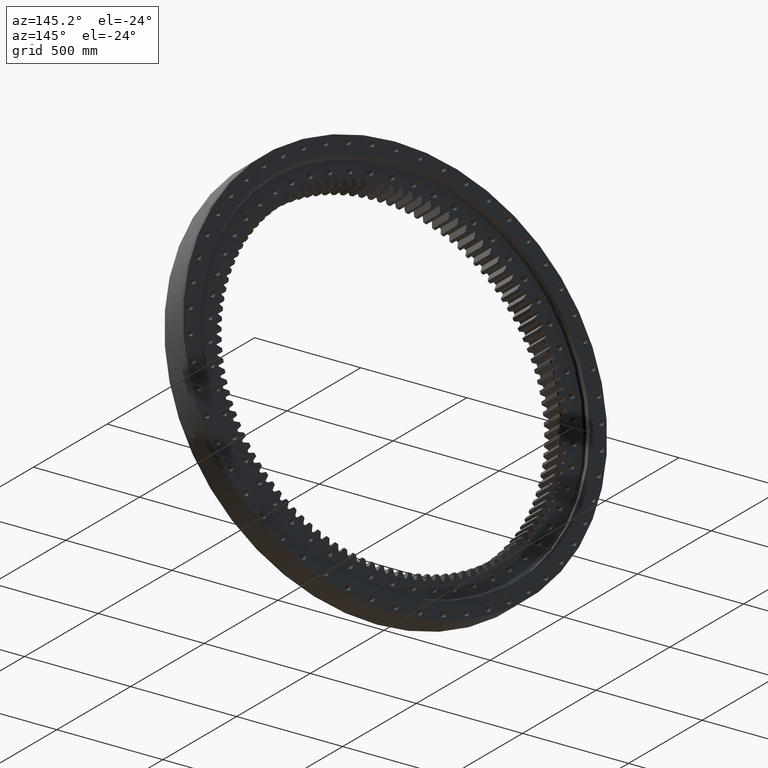
[diagram: clean part render]
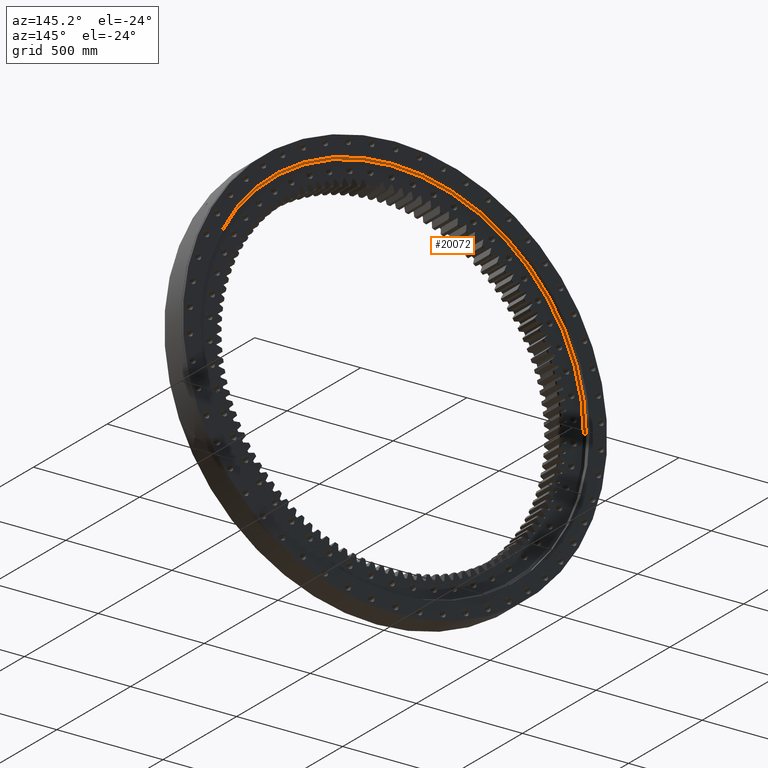
[diagram: same view with one face highlighted and labeled with its STEP entity id]
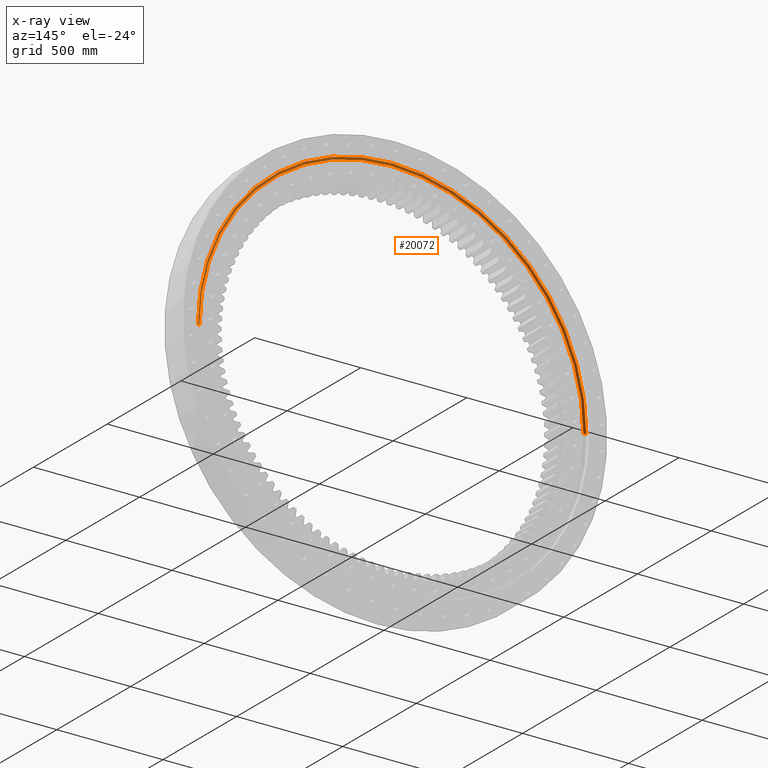
[diagram: x-ray of the same camera — body ghosted, the highlighted face saturated]
A machine part, auxiliary view. The second image highlights one B-rep face of the part: STEP entity #20072.
The next image is the same camera in x-ray: the body ghosted, the highlighted face saturated — about 0% of this face is hidden behind the body in this view.
In plain terms, the highlighted conical surface has half-angle 63.206 deg.
Its self-contained STEP definition (entity closure, byte-faithful):
#471 = CIRCLE ( 'NONE', #15726, 905.2499999999997700 ) ;
#3609 = VECTOR ( 'NONE', #19099, 1000.000000000000200 ) ;
#4188 = AXIS2_PLACEMENT_3D ( 'NONE', #7542, #26668, #10306 ) ;
#4518 = VERTEX_POINT ( 'NONE', #21375 ) ;
#4650 = AXIS2_PLACEMENT_3D ( 'NONE', #19124, #35469, #21851 ) ;
#4665 = ORIENTED_EDGE ( 'NONE', *, *, #32385, .F. ) ;
#7542 = CARTESIAN_POINT ( 'NONE',  ( 1.749178527664535300E-015, 55.05000000000000400, 0.0000000000000000000 ) ) ;
#8078 = CARTESIAN_POINT ( 'NONE',  ( -915.2499999999998900, 55.05000000000016800, 0.0000000000000000000 ) ) ;
#8119 = ORIENTED_EDGE ( 'NONE', *, *, #12206, .F. ) ;
#10306 = DIRECTION ( 'NONE',  ( -1.000000000000000000, 1.819540603045872700E-016, 0.0000000000000000000 ) ) ;
#10943 = LINE ( 'NONE', #8078, #3609 ) ;
#11110 = VERTEX_POINT ( 'NONE', #17815 ) ;
#11367 = CONICAL_SURFACE ( 'NONE', #4650, 915.2499999999998900, 1.103156723031657500 ) ;
#12206 = EDGE_CURVE ( 'NONE', #23127, #11110, #471, .T. ) ;
#12752 = LINE ( 'NONE', #17414, #20885 ) ;
#12756 = ORIENTED_EDGE ( 'NONE', *, *, #17572, .T. ) ;
#15191 = VERTEX_POINT ( 'NONE', #30510 ) ;
#15726 = AXIS2_PLACEMENT_3D ( 'NONE', #28987, #28833, #23826 ) ;
#17012 = CIRCLE ( 'NONE', #4188, 915.2499999999998900 ) ;
#17141 = CARTESIAN_POINT ( 'NONE',  ( -905.2499999999997700, 49.99999999999997900, 0.0000000000000000000 ) ) ;
#17414 = CARTESIAN_POINT ( 'NONE',  ( 915.2499999999998900, 55.04999999999983400, 1.120857982919614800E-013 ) ) ;
#17525 = DIRECTION ( 'NONE',  ( 0.8926347946143685700, 0.4507805712802671100, 1.093162344032041300E-016 ) ) ;
#17572 = EDGE_CURVE ( 'NONE', #15191, #4518, #17012, .T. ) ;
#17815 = CARTESIAN_POINT ( 'NONE',  ( 905.2499999999997700, 49.99999999999965200, 1.114734748923877900E-013 ) ) ;
#18301 = EDGE_CURVE ( 'NONE', #23127, #15191, #10943, .T. ) ;
#19099 = DIRECTION ( 'NONE',  ( -0.8926347946143684500, 0.4507805712802674900, 0.0000000000000000000 ) ) ;
#19124 = CARTESIAN_POINT ( 'NONE',  ( 1.749178527664535300E-015, 55.05000000000000400, 0.0000000000000000000 ) ) ;
#20072 = ADVANCED_FACE ( 'NONE', ( #33234 ), #11367, .F. ) ;
#20885 = VECTOR ( 'NONE', #17525, 1000.000000000000100 ) ;
#21375 = CARTESIAN_POINT ( 'NONE',  ( 915.2499999999998900, 55.04999999999983400, 1.120857982919614800E-013 ) ) ;
#21851 = DIRECTION ( 'NONE',  ( -1.000000000000000000, 1.819540603045872700E-016, 0.0000000000000000000 ) ) ;
#23127 = VERTEX_POINT ( 'NONE', #17141 ) ;
#23826 = DIRECTION ( 'NONE',  ( -1.000000000000000000, 1.839640471624120800E-016, 0.0000000000000000000 ) ) ;
#26668 = DIRECTION ( 'NONE',  ( 1.836909530733565900E-016, 1.000000000000000000, -0.0000000000000000000 ) ) ;
#28833 = DIRECTION ( 'NONE',  ( 1.836909530733565900E-016, 1.000000000000000000, -0.0000000000000000000 ) ) ;
#28987 = CARTESIAN_POINT ( 'NONE',  ( 8.215392146440507500E-016, 49.99999999999981500, 0.0000000000000000000 ) ) ;
#30001 = ORIENTED_EDGE ( 'NONE', *, *, #18301, .T. ) ;
#30510 = CARTESIAN_POINT ( 'NONE',  ( -915.2499999999998900, 55.05000000000016800, 0.0000000000000000000 ) ) ;
#32385 = EDGE_CURVE ( 'NONE', #11110, #4518, #12752, .T. ) ;
#33234 = FACE_OUTER_BOUND ( 'NONE', #34074, .T. ) ;
#34074 = EDGE_LOOP ( 'NONE', ( #4665, #8119, #30001, #12756 ) ) ;
#35469 = DIRECTION ( 'NONE',  ( 1.836909530733565900E-016, 1.000000000000000000, -0.0000000000000000000 ) ) ;